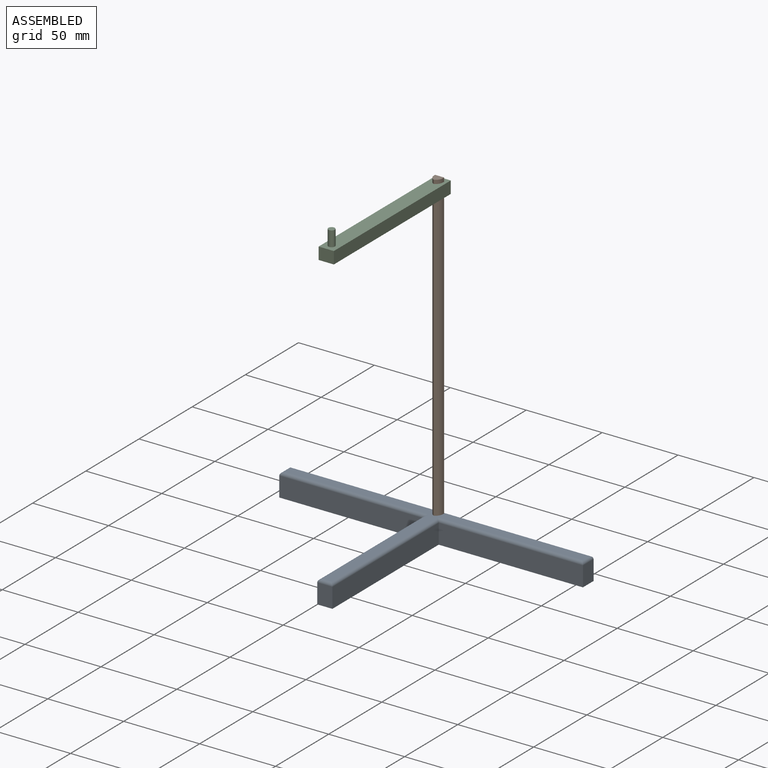
[diagram: assembled view]
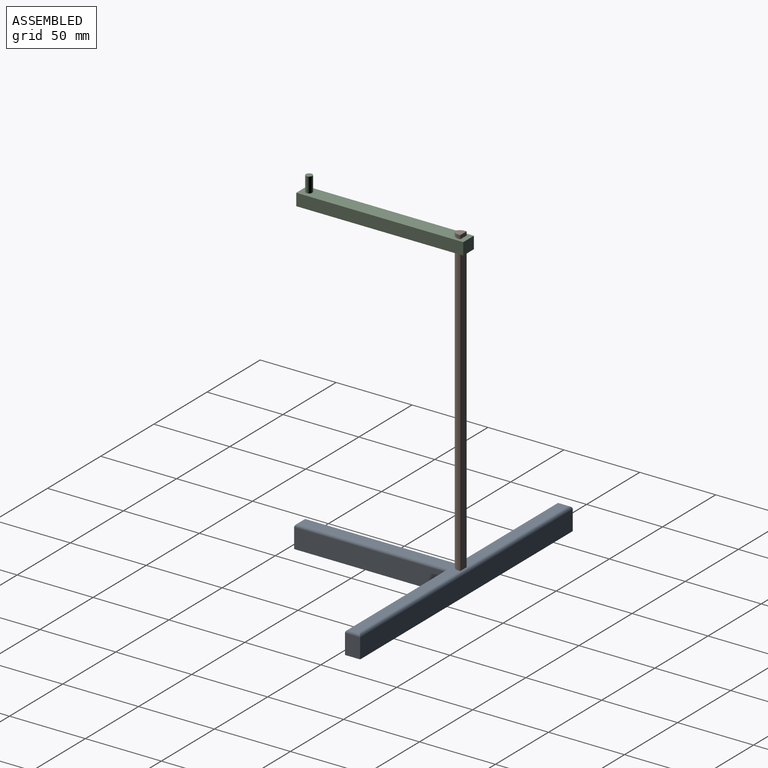
[diagram: assembled view, second angle]
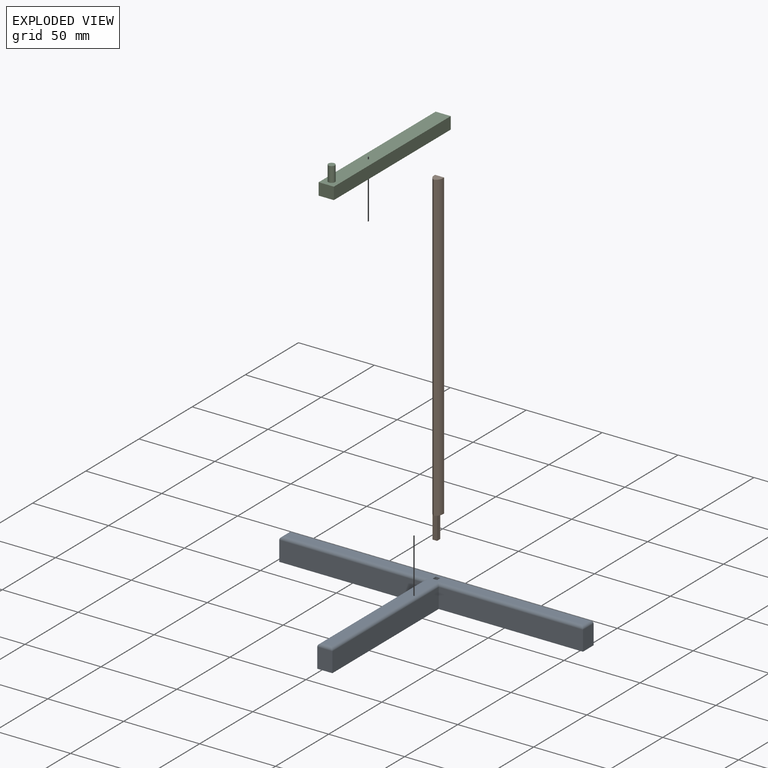
[diagram: exploded view]
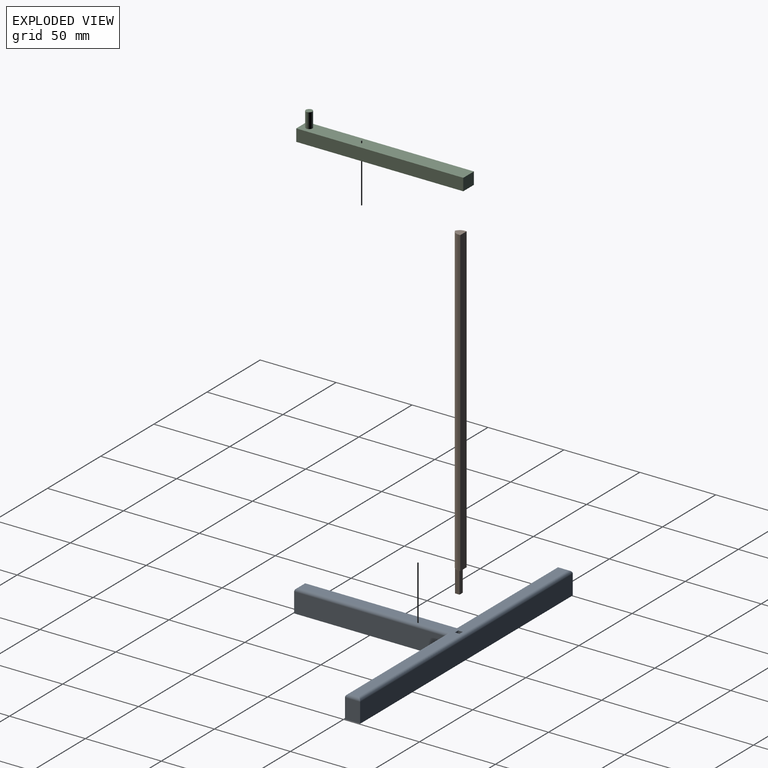
[diagram: exploded view, second angle]
ASSEMBLY  parts=3 mates=2
PART A: 22 faces, bbox 200x110x15 mm
  f0: plane 196x106mm, normal (0,0,1), area 1767mm2, adj f10,f11,f12,f13,f14,f15,f16,f17
  f1: plane 200x110mm, normal (0,0,-1), area 2991mm2, adj f2,f3,f4,f5,f6,f7,f8,f9
  f2: plane 95x13mm, normal (0,-1,0), area 1235mm2, adj f1,f3,f9,f14
  f3: plane 13x10mm, normal (1,0,0), area 130mm2, adj f1,f2,f4,f12
  f4: plane 200x13mm, normal (0,1,0), area 2600mm2, adj f1,f3,f5,f10
  f5: plane 13x10mm, normal (-1,0,0), area 130mm2, adj f1,f4,f6,f11
  f6: plane 95x13mm, normal (0,-1,0), area 1235mm2, adj f1,f5,f7,f13
  f7: plane 100x13mm, normal (-1,0,0), area 1300mm2, adj f1,f6,f8,f15
  f8: plane 13x10mm, normal (0,-1,0), area 130mm2, adj f1,f7,f9,f17
  f9: plane 100x13mm, normal (1,0,0), area 1300mm2, adj f1,f2,f8,f16
  f10: cylinder r=2mm len=200mm, axis (1,0,0), area 623.8mm2, adj f0,f4,f11,f12
  f11: cylinder r=2mm len=10mm, axis (0,1,0), area 26.8mm2, adj f0,f5,f10,f13
  f12: cylinder r=2mm len=10mm, axis (0,-1,0), area 26.8mm2, adj f0,f3,f10,f14
  f13: cylinder r=2mm len=97mm, axis (-1,0,0), area 298.5mm2, adj f0,f6,f11,f15
  f14: cylinder r=2mm len=97mm, axis (-1,0,0), area 298.5mm2, adj f0,f2,f12,f16
  f15: cylinder r=2mm len=102mm, axis (0,1,0), area 314.2mm2, adj f0,f7,f13,f17
  f16: cylinder r=2mm len=102mm, axis (0,-1,0), area 314.2mm2, adj f0,f9,f14,f17
  f17: cylinder r=2mm len=10mm, axis (-1,0,0), area 26.8mm2, adj f0,f8,f15,f16
  f18: plane 15x3mm, normal (0,1,0), area 45mm2, adj f0,f1,f19,f21
  f19: plane 15x3mm, normal (-1,0,0), area 45mm2, adj f0,f1,f18,f20
  f20: plane 15x3mm, normal (0,-1,0), area 45mm2, adj f0,f1,f19,f21
  f21: plane 15x3mm, normal (1,0,0), area 45mm2, adj f0,f1,f18,f20
PART B: 12 faces, bbox 6x5.6x215 mm
  f0: plane 3x3mm, normal (0,0,-1), area 9mm2, adj f1,f2,f3,f4
  f1: plane 15x3mm, normal (1,0,0), area 45mm2, adj f0,f3,f4,f9
  f2: plane 15x3mm, normal (-1,0,0), area 45mm2, adj f0,f3,f4,f9
  f3: plane 15x3mm, normal (0,-1,0), area 45mm2, adj f0,f1,f2,f9
  f4: plane 15x3mm, normal (0,1,0), area 45mm2, adj f0,f1,f2,f9
  f5: plane 200x6mm, normal (0,1,0), area 1200mm2, adj f6,f7,f8,f9
  f6: plane 200x1mm, normal (-1,0,0), area 200mm2, adj f5,f8,f9,f11
  f7: plane 200x1mm, normal (1,0,0), area 200mm2, adj f5,f8,f9,f10
  f8: plane 6x5.58mm, normal (0,0,1), area 25.8mm2, adj f5,f6,f7,f10,f11
  f9: plane 6x5.58mm, normal (0,0,-1), area 16.8mm2, adj f1,f2,f3,f4,f5,f6,f7,f10
  f10: cylinder r=5mm len=200mm, axis (0,0,-1), area 1159.3mm2, adj f7,f8,f9,f11
  f11: cylinder r=5mm len=200mm, axis (0,0,1), area 1159.3mm2, adj f6,f8,f9,f10
PART C: 14 faces, bbox 10x110x18 mm
  f0: plane 110x10mm, normal (0,0,-1), area 1074.2mm2, adj f1,f2,f3,f4,f6,f7,f8,f9
  f1: plane 10x8mm, normal (0,1,0), area 80mm2, adj f0,f2,f4,f5
  f2: plane 110x8mm, normal (-1,0,0), area 880mm2, adj f0,f1,f3,f5
  f3: plane 10x8mm, normal (0,-1,0), area 80mm2, adj f0,f2,f4,f5
  f4: plane 110x8mm, normal (1,0,0), area 880mm2, adj f0,f1,f3,f5
  f5: plane 110x10mm, normal (0,0,1), area 1085.5mm2, adj f1,f2,f3,f4,f12
  f6: plane 7x6mm, normal (0,-1,0), area 42mm2, adj f0,f7,f10,f11
  f7: plane 7x1mm, normal (-1,0,0), area 7mm2, adj f0,f6,f8,f11
  f8: cylinder r=5mm len=7mm, axis (0,0,-1), area 40.6mm2, adj f0,f7,f9,f11
  f9: cylinder r=5mm len=7mm, axis (0,0,-1), area 40.6mm2, adj f0,f8,f10,f11
  f10: plane 7x1mm, normal (1,0,0), area 7mm2, adj f0,f6,f9,f11
  f11: plane 6x5.58mm, normal (0,0,-1), area 25.8mm2, adj f6,f7,f8,f9,f10
  f12: cylinder r=2.15mm len=10mm, axis (0,0,-1), area 135mm2, adj f5,f13
  f13: plane 4.3x4.3mm, normal (0,0,1), area 14.5mm2, adj f12
PLACE A rot(axis=(-0.12,0.99,-0.11),0deg) t=(-42.1,16.47,1.6)mm
PLACE B rot(axis=(-0.12,0.99,-0.11),0deg) t=(-42.1,12.97,1.57)mm
PLACE C rot(axis=(-0.12,0.99,-0.11),0deg) t=(-42.1,17.87,206.06)mm
MATE slider C.f0 <-> B.f8  axis (0,0,-1) through (-42.1,12.2,206.06)mm
MATE slider A.f0 <-> B.f0  axis (0,0,1) through (-42.1,11.47,16.6)mm
